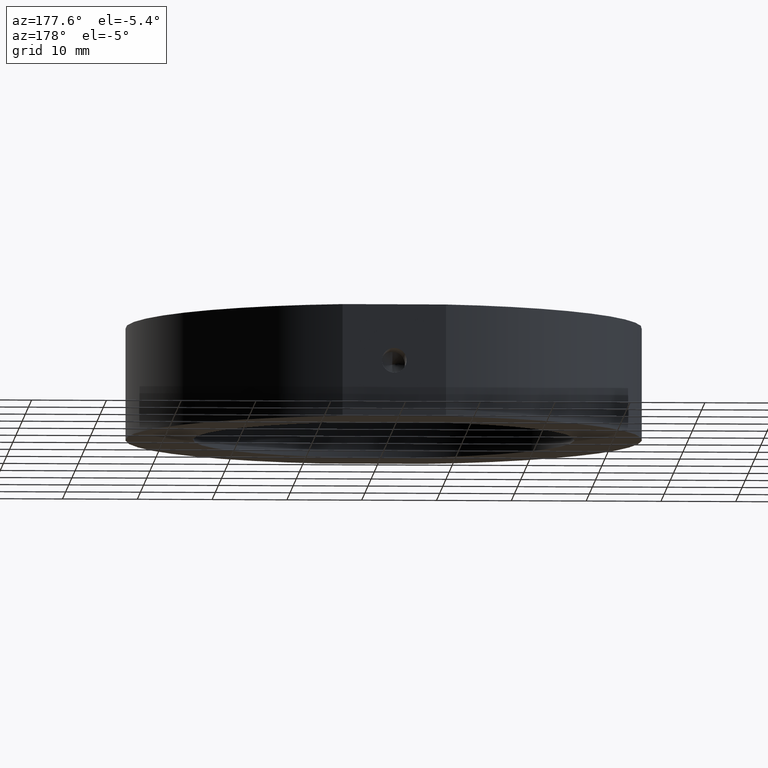
[diagram: clean part render]
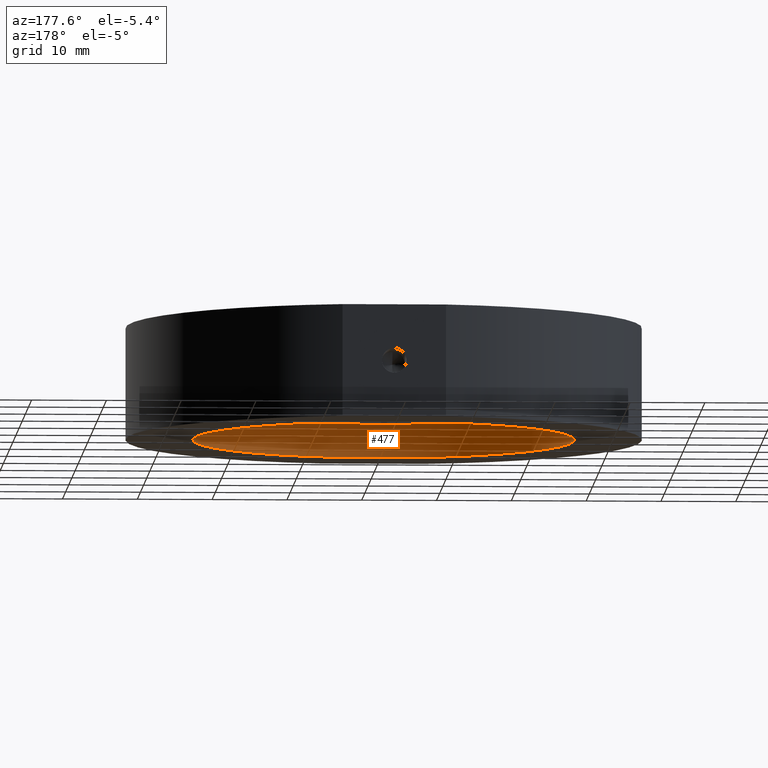
[diagram: same view with one face highlighted and labeled with its STEP entity id]
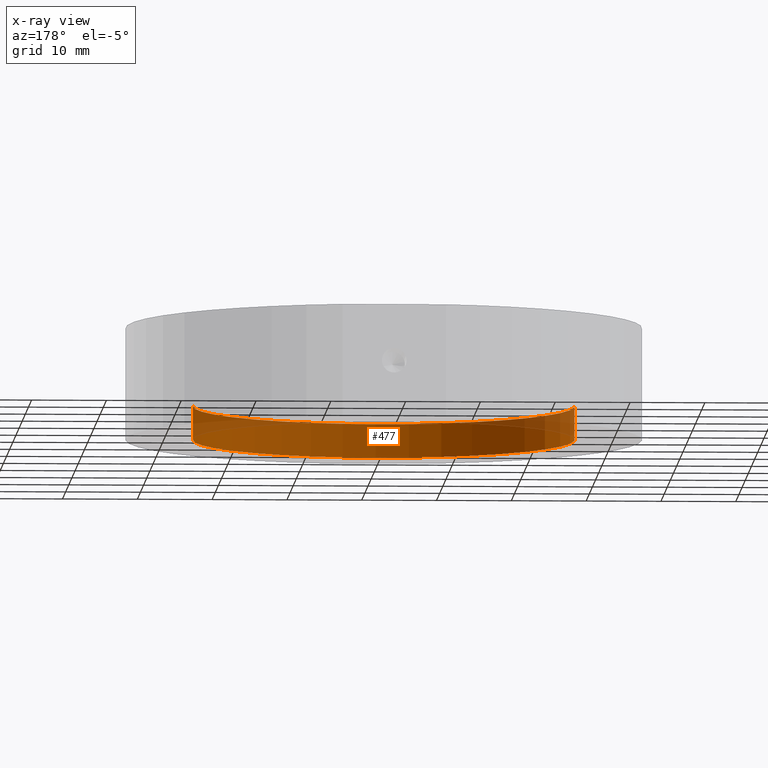
[diagram: x-ray of the same camera — body ghosted, the highlighted face saturated]
A machine part, auxiliary view. The second image highlights one B-rep face of the part: STEP entity #477.
The next image is the same camera in x-ray: the body ghosted, the highlighted face saturated — about 18% of this face is hidden behind the body in this view.
In plain terms, the highlighted cylindrical surface (partial cylindrical patch) has radius 25.5 mm, axis along (-0, -0, -1).
Its self-contained STEP definition (entity closure, byte-faithful):
#26 = CIRCLE ( 'NONE', #875, 25.50000000000000000 ) ;
#76 = CARTESIAN_POINT ( 'NONE',  ( 3.544013711941110900E-015, 0.0000000000000000000, -2.999999999999999100 ) ) ;
#83 = CYLINDRICAL_SURFACE ( 'NONE', #391, 25.50000000000000000 ) ;
#105 = ORIENTED_EDGE ( 'NONE', *, *, #392, .T. ) ;
#122 = EDGE_CURVE ( 'NONE', #753, #234, #233, .T. ) ;
#140 = CARTESIAN_POINT ( 'NONE',  ( 25.50000000000000400, 3.122849337825750200E-015, -3.000000000000002200 ) ) ;
#152 = CARTESIAN_POINT ( 'NONE',  ( 25.50000000000000000, 3.122849337825750200E-015, -31.93906810035839800 ) ) ;
#211 = DIRECTION ( 'NONE',  ( -1.224646799147350500E-016, -0.0000000000000000000, -1.000000000000000000 ) ) ;
#221 = VERTEX_POINT ( 'NONE', #140 ) ;
#228 = DIRECTION ( 'NONE',  ( -1.224646799147350500E-016, -0.0000000000000000000, -1.000000000000000000 ) ) ;
#233 = CIRCLE ( 'NONE', #532, 25.50000000000000000 ) ;
#234 = VERTEX_POINT ( 'NONE', #735 ) ;
#263 = EDGE_LOOP ( 'NONE', ( #447, #105, #265, #789 ) ) ;
#265 = ORIENTED_EDGE ( 'NONE', *, *, #122, .T. ) ;
#285 = DIRECTION ( 'NONE',  ( -1.000000000000000000, 0.0000000000000000000, 1.360567432138672300E-016 ) ) ;
#319 = CARTESIAN_POINT ( 'NONE',  ( -25.49999999999999600, 0.0000000000000000000, -2.999999999999996000 ) ) ;
#326 = CARTESIAN_POINT ( 'NONE',  ( 0.0000000000000000000, 0.0000000000000000000, -31.93906810035839800 ) ) ;
#389 = VECTOR ( 'NONE', #228, 1000.000000000000000 ) ;
#391 = AXIS2_PLACEMENT_3D ( 'NONE', #326, #463, #770 ) ;
#392 = EDGE_CURVE ( 'NONE', #221, #753, #468, .T. ) ;
#434 = DIRECTION ( 'NONE',  ( -1.224646799147350500E-016, -0.0000000000000000000, -1.000000000000000000 ) ) ;
#445 = DIRECTION ( 'NONE',  ( -1.224646799147350500E-016, -0.0000000000000000000, -1.000000000000000000 ) ) ;
#447 = ORIENTED_EDGE ( 'NONE', *, *, #911, .F. ) ;
#461 = VERTEX_POINT ( 'NONE', #319 ) ;
#463 = DIRECTION ( 'NONE',  ( -1.224646799147350500E-016, -0.0000000000000000000, -1.000000000000000000 ) ) ;
#468 = LINE ( 'NONE', #152, #774 ) ;
#477 = ADVANCED_FACE ( 'NONE', ( #575 ), #83, .F. ) ;
#532 = AXIS2_PLACEMENT_3D ( 'NONE', #954, #211, #285 ) ;
#570 = CARTESIAN_POINT ( 'NONE',  ( 25.50000000000000400, 3.122849337825750200E-015, -7.500000000000000000 ) ) ;
#575 = FACE_OUTER_BOUND ( 'NONE', #263, .T. ) ;
#595 = CARTESIAN_POINT ( 'NONE',  ( -25.50000000000000000, 0.0000000000000000000, -31.93906810035839800 ) ) ;
#644 = LINE ( 'NONE', #595, #389 ) ;
#735 = CARTESIAN_POINT ( 'NONE',  ( -25.49999999999999600, 0.0000000000000000000, -7.499999999999992900 ) ) ;
#753 = VERTEX_POINT ( 'NONE', #570 ) ;
#770 = DIRECTION ( 'NONE',  ( -1.000000000000000000, 0.0000000000000000000, 0.0000000000000000000 ) ) ;
#774 = VECTOR ( 'NONE', #445, 1000.000000000000000 ) ;
#789 = ORIENTED_EDGE ( 'NONE', *, *, #853, .F. ) ;
#815 = DIRECTION ( 'NONE',  ( -1.000000000000000000, 0.0000000000000000000, 1.190496503121338200E-016 ) ) ;
#853 = EDGE_CURVE ( 'NONE', #461, #234, #644, .T. ) ;
#875 = AXIS2_PLACEMENT_3D ( 'NONE', #76, #434, #815 ) ;
#911 = EDGE_CURVE ( 'NONE', #221, #461, #26, .T. ) ;
#954 = CARTESIAN_POINT ( 'NONE',  ( 2.992922652324803100E-015, 0.0000000000000000000, -7.499999999999996400 ) ) ;